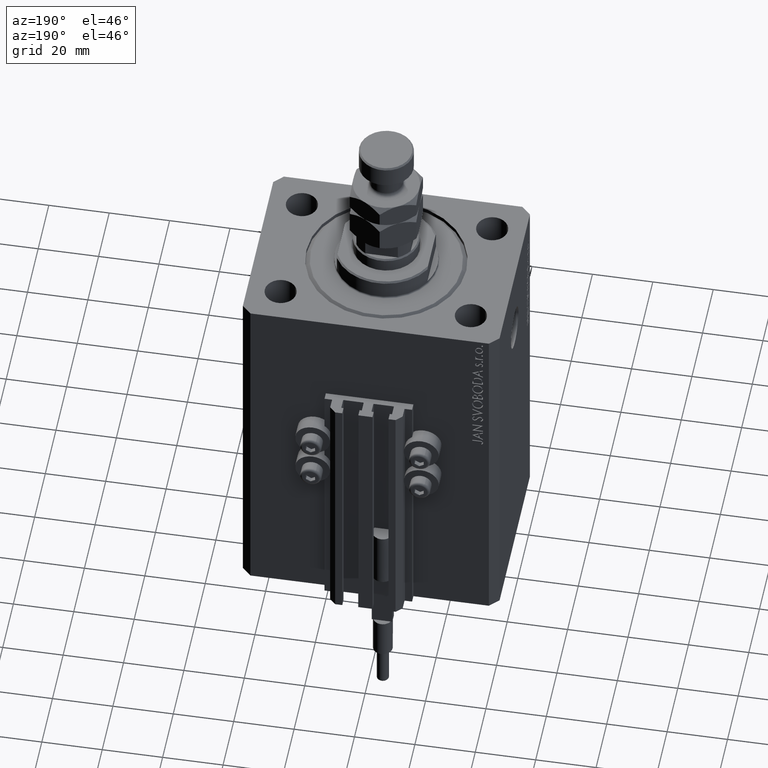
[diagram: clean part render]
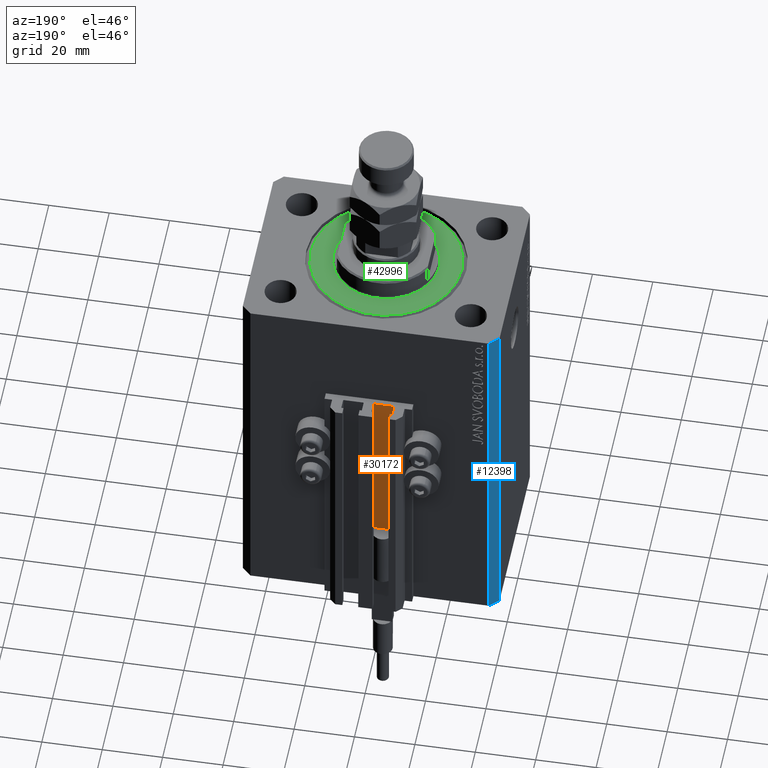
[diagram: same view with three faces highlighted in distinct colors, each labeled with its STEP entity id]
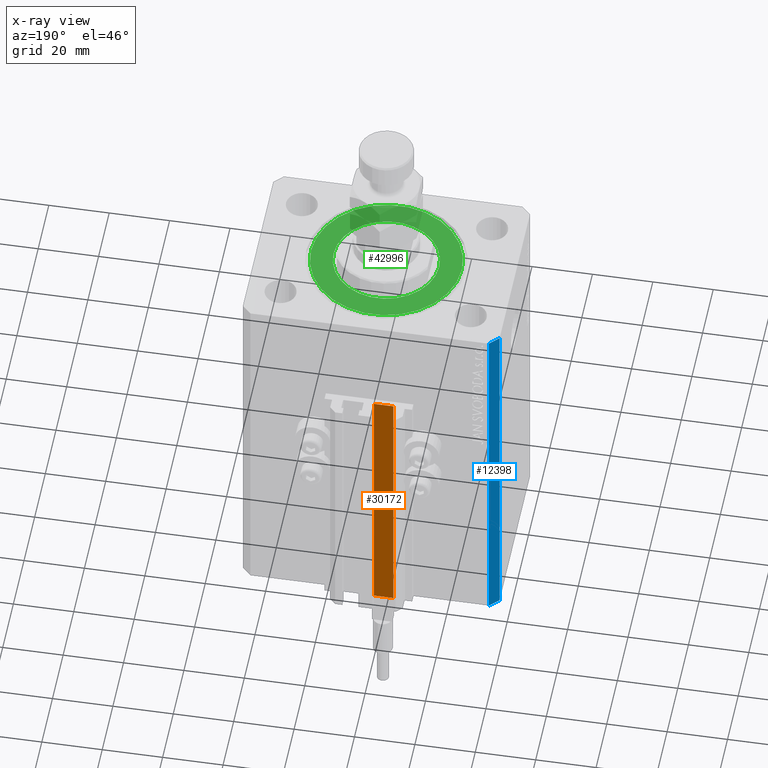
[diagram: x-ray of the same camera — body ghosted, the three highlighted faces saturated]
A machine part, auxiliary view with three faces highlighted in distinct colors.
The next image is the same camera in x-ray (body ghosted, the three faces saturated) — at least one of them is partly hidden behind the body in this view.
Their STEP definitions:

[orange] entity #30172 — the highlighted planar face has unit normal (0, 1, 0).
#1007 = FACE_OUTER_BOUND ( 'NONE', #49627, .T. ) ;
#1748 = DIRECTION ( 'NONE',  ( 0.000000000000000000, 1.000000000000000000, -0.000000000000000000 ) ) ;
#4230 = CARTESIAN_POINT ( 'NONE',  ( -1.800000000000000933, 33.50000000000000000, -123.0000000000000000 ) ) ;
#5444 = VERTEX_POINT ( 'NONE', #20691 ) ;
#5794 = CARTESIAN_POINT ( 'NONE',  ( -8.199999999999997513, 33.50000000000000000, -123.0000000000000000 ) ) ;
#5810 = EDGE_CURVE ( 'NONE', #31017, #28611, #49542, .T. ) ;
#7895 = VECTOR ( 'NONE', #39233, 1000.000000000000000 ) ;
#9772 = DIRECTION ( 'NONE',  ( 0.000000000000000000, 0.000000000000000000, 1.000000000000000000 ) ) ;
#13219 = ORIENTED_EDGE ( 'NONE', *, *, #48733, .T. ) ;
#13857 = CARTESIAN_POINT ( 'NONE',  ( -1.800000000000000933, 33.50000000000000000, -123.0000000000000000 ) ) ;
#14654 = EDGE_CURVE ( 'NONE', #31017, #28197, #24845, .T. ) ;
#15266 = VECTOR ( 'NONE', #22100, 1000.000000000000000 ) ;
#20691 = CARTESIAN_POINT ( 'NONE',  ( -8.199999999999997513, 33.50000000000000000, -33.00000000000000000 ) ) ;
#22100 = DIRECTION ( 'NONE',  ( -1.000000000000000000, 0.000000000000000000, 0.000000000000000000 ) ) ;
#24250 = CARTESIAN_POINT ( 'NONE',  ( -1.800000000000000933, 33.50000000000000000, -33.00000000000000000 ) ) ;
#24372 = LINE ( 'NONE', #35968, #42690 ) ;
#24845 = LINE ( 'NONE', #35954, #27782 ) ;
#25700 = EDGE_CURVE ( 'NONE', #28197, #5444, #49543, .T. ) ;
#27662 = PLANE ( 'NONE',  #41078 ) ;
#27757 = ORIENTED_EDGE ( 'NONE', *, *, #14654, .F. ) ;
#27782 = VECTOR ( 'NONE', #32910, 1000.000000000000000 ) ;
#28197 = VERTEX_POINT ( 'NONE', #24250 ) ;
#28611 = VERTEX_POINT ( 'NONE', #5794 ) ;
#28652 = CARTESIAN_POINT ( 'NONE',  ( -1.800000000000000933, 33.50000000000000000, -123.0000000000000000 ) ) ;
#30172 = ADVANCED_FACE ( 'NONE', ( #1007 ), #27662, .T. ) ;
#31017 = VERTEX_POINT ( 'NONE', #13857 ) ;
#32067 = ORIENTED_EDGE ( 'NONE', *, *, #5810, .T. ) ;
#32910 = DIRECTION ( 'NONE',  ( 0.000000000000000000, 0.000000000000000000, 1.000000000000000000 ) ) ;
#33452 = CARTESIAN_POINT ( 'NONE',  ( -1.800000000000000933, 33.50000000000000000, -33.00000000000000000 ) ) ;
#35954 = CARTESIAN_POINT ( 'NONE',  ( -1.800000000000000933, 33.50000000000000000, -123.0000000000000000 ) ) ;
#35968 = CARTESIAN_POINT ( 'NONE',  ( -8.199999999999997513, 33.50000000000000000, -123.0000000000000000 ) ) ;
#39233 = DIRECTION ( 'NONE',  ( -1.000000000000000000, 0.000000000000000000, 0.000000000000000000 ) ) ;
#40252 = DIRECTION ( 'NONE',  ( 0.000000000000000000, 0.000000000000000000, 1.000000000000000000 ) ) ;
#41078 = AXIS2_PLACEMENT_3D ( 'NONE', #28652, #1748, #9772 ) ;
#42690 = VECTOR ( 'NONE', #40252, 1000.000000000000000 ) ;
#45732 = ORIENTED_EDGE ( 'NONE', *, *, #25700, .F. ) ;
#48733 = EDGE_CURVE ( 'NONE', #28611, #5444, #24372, .T. ) ;
#49542 = LINE ( 'NONE', #4230, #7895 ) ;
#49543 = LINE ( 'NONE', #33452, #15266 ) ;
#49627 = EDGE_LOOP ( 'NONE', ( #45732, #27757, #32067, #13219 ) ) ;

[blue] entity #12398 — the highlighted planar face has unit normal (-0.7071, 0.7071, 0).
#986 = VECTOR ( 'NONE', #43676, 1000.000000000000000 ) ;
#1368 = DIRECTION ( 'NONE',  ( -0.7071067811865471286, -0.7071067811865479058, 0.000000000000000000 ) ) ;
#4058 = DIRECTION ( 'NONE',  ( -0.7071067811865479058, 0.7071067811865472397, 0.000000000000000000 ) ) ;
#5574 = VECTOR ( 'NONE', #27184, 1000.000000000000000 ) ;
#6710 = EDGE_LOOP ( 'NONE', ( #30307, #19916, #43854, #42197 ) ) ;
#7806 = CARTESIAN_POINT ( 'NONE',  ( -39.50000000000000711, 31.50000000000000000, -123.0000000000000000 ) ) ;
#8440 = DIRECTION ( 'NONE',  ( 0.000000000000000000, 0.000000000000000000, 1.000000000000000000 ) ) ;
#10900 = VECTOR ( 'NONE', #1368, 1000.000000000000000 ) ;
#11570 = PLANE ( 'NONE',  #46308 ) ;
#11815 = LINE ( 'NONE', #14854, #5574 ) ;
#12273 = EDGE_CURVE ( 'NONE', #33905, #41979, #38897, .T. ) ;
#12398 = ADVANCED_FACE ( 'NONE', ( #30742 ), #11570, .T. ) ;
#14221 = VECTOR ( 'NONE', #8440, 1000.000000000000000 ) ;
#14854 = CARTESIAN_POINT ( 'NONE',  ( -39.50000000000000711, 31.50000000000000000, -123.0000000000000000 ) ) ;
#16244 = CARTESIAN_POINT ( 'NONE',  ( -42.50000000000000000, 28.50000000000000000, -123.0000000000000000 ) ) ;
#18448 = EDGE_CURVE ( 'NONE', #38226, #41979, #42943, .T. ) ;
#19916 = ORIENTED_EDGE ( 'NONE', *, *, #26401, .F. ) ;
#26401 = EDGE_CURVE ( 'NONE', #37375, #33905, #11815, .T. ) ;
#27184 = DIRECTION ( 'NONE',  ( 0.000000000000000000, 0.000000000000000000, 1.000000000000000000 ) ) ;
#28447 = CARTESIAN_POINT ( 'NONE',  ( -39.50000000000000711, 31.50000000000000000, -123.0000000000000000 ) ) ;
#30307 = ORIENTED_EDGE ( 'NONE', *, *, #12273, .F. ) ;
#30742 = FACE_OUTER_BOUND ( 'NONE', #6710, .T. ) ;
#32693 = EDGE_CURVE ( 'NONE', #37375, #38226, #42681, .T. ) ;
#33905 = VERTEX_POINT ( 'NONE', #49477 ) ;
#34769 = DIRECTION ( 'NONE',  ( -0.7071067811865472397, -0.7071067811865479058, 0.000000000000000000 ) ) ;
#35870 = CARTESIAN_POINT ( 'NONE',  ( -39.50000000000000711, 31.50000000000000000, 0.000000000000000000 ) ) ;
#36330 = CARTESIAN_POINT ( 'NONE',  ( -42.50000000000000000, 28.50000000000000000, -123.0000000000000000 ) ) ;
#37375 = VERTEX_POINT ( 'NONE', #28447 ) ;
#37561 = CARTESIAN_POINT ( 'NONE',  ( -42.50000000000000000, 28.50000000000000000, 0.000000000000000000 ) ) ;
#38226 = VERTEX_POINT ( 'NONE', #36330 ) ;
#38897 = LINE ( 'NONE', #35870, #10900 ) ;
#41979 = VERTEX_POINT ( 'NONE', #37561 ) ;
#42197 = ORIENTED_EDGE ( 'NONE', *, *, #18448, .T. ) ;
#42681 = LINE ( 'NONE', #46457, #986 ) ;
#42943 = LINE ( 'NONE', #16244, #14221 ) ;
#43676 = DIRECTION ( 'NONE',  ( -0.7071067811865471286, -0.7071067811865479058, 0.000000000000000000 ) ) ;
#43854 = ORIENTED_EDGE ( 'NONE', *, *, #32693, .T. ) ;
#46308 = AXIS2_PLACEMENT_3D ( 'NONE', #7806, #4058, #34769 ) ;
#46457 = CARTESIAN_POINT ( 'NONE',  ( -39.50000000000000711, 31.50000000000000000, -123.0000000000000000 ) ) ;
#49477 = CARTESIAN_POINT ( 'NONE',  ( -39.50000000000000711, 31.50000000000000000, 0.000000000000000000 ) ) ;

[green] entity #42996 — the highlighted planar face has unit normal (0, 0, -1).
#458 = CARTESIAN_POINT ( 'NONE',  ( 17.50000000000000000, 0.000000000000000000, 2.168404344971008868E-16 ) ) ;
#833 = EDGE_CURVE ( 'NONE', #40883, #18060, #5374, .T. ) ;
#1414 = ORIENTED_EDGE ( 'NONE', *, *, #833, .T. ) ;
#1823 = DIRECTION ( 'NONE',  ( 1.000000000000000000, 0.000000000000000000, 0.000000000000000000 ) ) ;
#1872 = CARTESIAN_POINT ( 'NONE',  ( -24.99999999999995026, 3.153465507804431248E-15, 0.000000000000000000 ) ) ;
#3620 = VERTEX_POINT ( 'NONE', #6422 ) ;
#5077 = CARTESIAN_POINT ( 'NONE',  ( 0.000000000000000000, 0.000000000000000000, 0.000000000000000000 ) ) ;
#5374 = CIRCLE ( 'NONE', #34329, 24.99999999999995026 ) ;
#6248 = EDGE_CURVE ( 'NONE', #18060, #40883, #18473, .T. ) ;
#6310 = FACE_OUTER_BOUND ( 'NONE', #43476, .T. ) ;
#6422 = CARTESIAN_POINT ( 'NONE',  ( -17.50000000000000000, 2.143131898507868643E-15, 2.168404344971008868E-16 ) ) ;
#9116 = DIRECTION ( 'NONE',  ( -0.000000000000000000, -0.000000000000000000, -1.000000000000000000 ) ) ;
#9967 = DIRECTION ( 'NONE',  ( 1.000000000000000000, 0.000000000000000000, 0.000000000000000000 ) ) ;
#11997 = CARTESIAN_POINT ( 'NONE',  ( 0.000000000000000000, 0.000000000000000000, 0.000000000000000000 ) ) ;
#13255 = CARTESIAN_POINT ( 'NONE',  ( 0.000000000000000000, 0.000000000000000000, 0.000000000000000000 ) ) ;
#14690 = EDGE_CURVE ( 'NONE', #3620, #25877, #29403, .T. ) ;
#15371 = CARTESIAN_POINT ( 'NONE',  ( 24.99999999999995026, 0.000000000000000000, 0.000000000000000000 ) ) ;
#16801 = DIRECTION ( 'NONE',  ( 0.000000000000000000, 0.000000000000000000, 1.000000000000000000 ) ) ;
#17570 = EDGE_CURVE ( 'NONE', #25877, #3620, #20633, .T. ) ;
#18060 = VERTEX_POINT ( 'NONE', #1872 ) ;
#18134 = CARTESIAN_POINT ( 'NONE',  ( 0.000000000000000000, 0.000000000000000000, 0.000000000000000000 ) ) ;
#18473 = CIRCLE ( 'NONE', #43410, 24.99999999999995026 ) ;
#20633 = CIRCLE ( 'NONE', #48793, 17.50000000000000000 ) ;
#22646 = DIRECTION ( 'NONE',  ( 0.000000000000000000, 0.000000000000000000, 1.000000000000000000 ) ) ;
#24935 = ORIENTED_EDGE ( 'NONE', *, *, #17570, .T. ) ;
#25877 = VERTEX_POINT ( 'NONE', #458 ) ;
#26150 = AXIS2_PLACEMENT_3D ( 'NONE', #13255, #16801, #9967 ) ;
#29403 = CIRCLE ( 'NONE', #26150, 17.50000000000000000 ) ;
#32668 = EDGE_LOOP ( 'NONE', ( #24935, #38451 ) ) ;
#33249 = DIRECTION ( 'NONE',  ( -0.000000000000000000, -0.000000000000000000, -1.000000000000000000 ) ) ;
#33626 = AXIS2_PLACEMENT_3D ( 'NONE', #18134, #22646, #37773 ) ;
#34329 = AXIS2_PLACEMENT_3D ( 'NONE', #5077, #33249, #40818 ) ;
#36810 = CARTESIAN_POINT ( 'NONE',  ( 0.000000000000000000, 0.000000000000000000, 0.000000000000000000 ) ) ;
#37049 = PLANE ( 'NONE',  #33626 ) ;
#37773 = DIRECTION ( 'NONE',  ( 1.000000000000000000, 0.000000000000000000, -0.000000000000000000 ) ) ;
#38451 = ORIENTED_EDGE ( 'NONE', *, *, #14690, .T. ) ;
#40818 = DIRECTION ( 'NONE',  ( 1.000000000000000000, 0.000000000000000000, 0.000000000000000000 ) ) ;
#40832 = FACE_BOUND ( 'NONE', #32668, .T. ) ;
#40883 = VERTEX_POINT ( 'NONE', #15371 ) ;
#41987 = DIRECTION ( 'NONE',  ( 1.000000000000000000, 0.000000000000000000, 0.000000000000000000 ) ) ;
#42996 = ADVANCED_FACE ( 'NONE', ( #40832, #6310 ), #37049, .F. ) ;
#43410 = AXIS2_PLACEMENT_3D ( 'NONE', #36810, #9116, #1823 ) ;
#43476 = EDGE_LOOP ( 'NONE', ( #1414, #45395 ) ) ;
#45395 = ORIENTED_EDGE ( 'NONE', *, *, #6248, .T. ) ;
#45745 = DIRECTION ( 'NONE',  ( 0.000000000000000000, 0.000000000000000000, 1.000000000000000000 ) ) ;
#48793 = AXIS2_PLACEMENT_3D ( 'NONE', #11997, #45745, #41987 ) ;